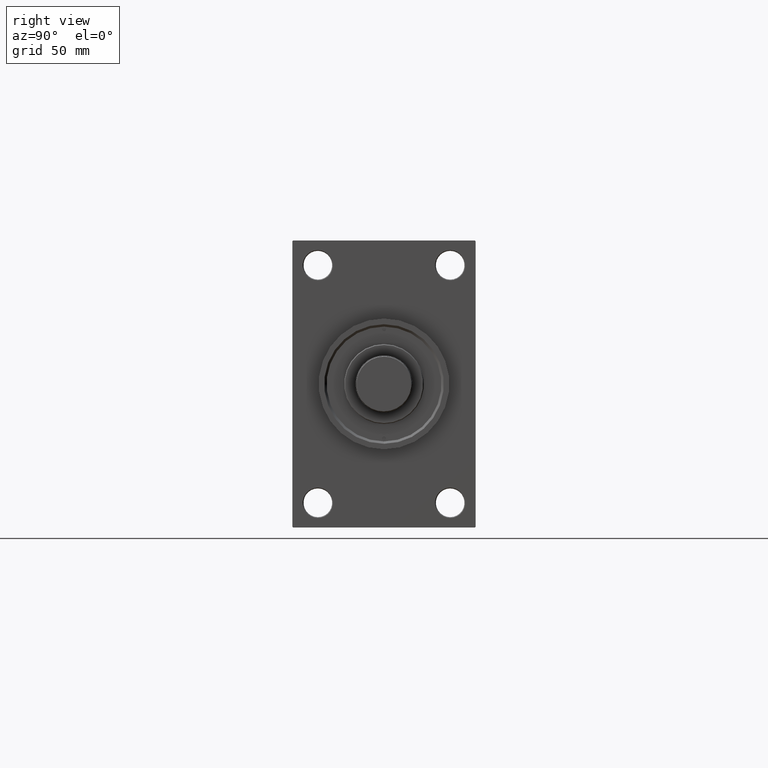
[diagram: clean part render]
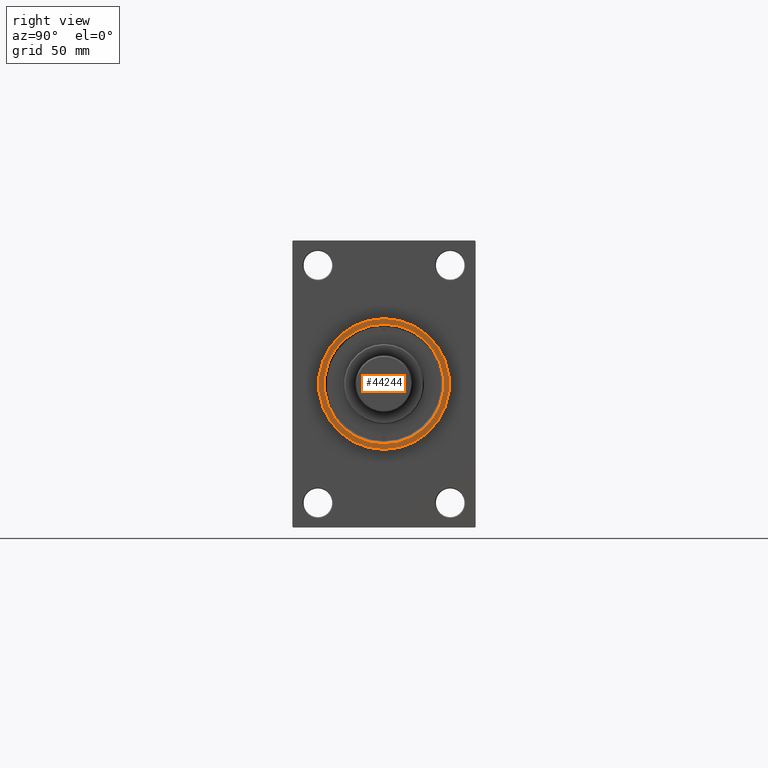
[diagram: same view with one face highlighted and labeled with its STEP entity id]
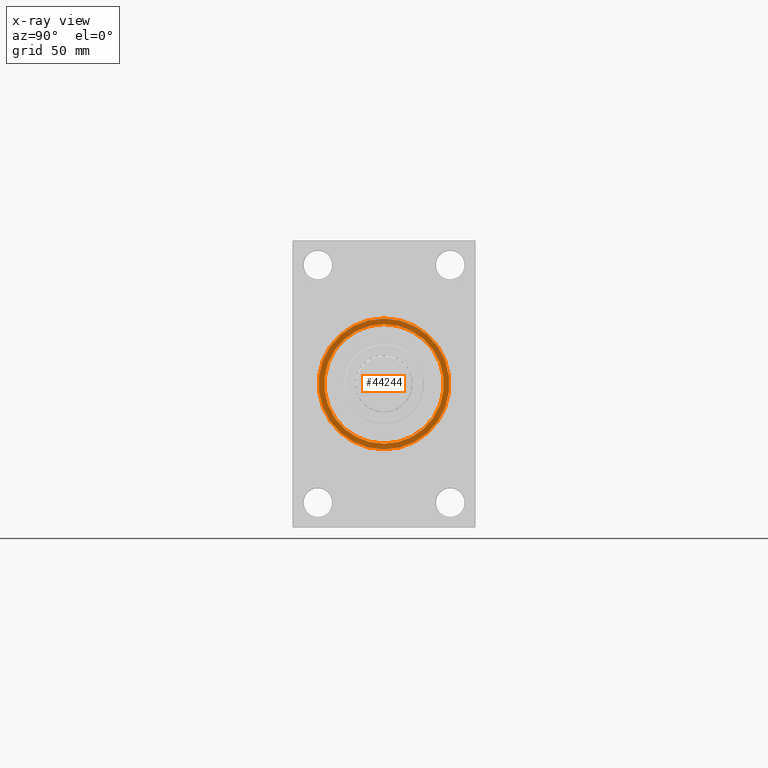
[diagram: x-ray of the same camera — body ghosted, the highlighted face saturated]
A machine part, right view. The second image highlights one B-rep face of the part: STEP entity #44244.
The next image is the same camera in x-ray: the body ghosted, the highlighted face saturated — about 0% of this face is hidden behind the body in this view.
In plain terms, the highlighted planar face has unit normal (1, 0, 0).
Its self-contained STEP definition (entity closure, byte-faithful):
#697 = DIRECTION ( 'NONE',  ( 1.000000000000000000, 0.000000000000000000, 0.000000000000000000 ) ) ;
#1362 = CARTESIAN_POINT ( 'NONE',  ( 319.0000000000000000, 4.592425496802571211E-15, 37.49999999999997868 ) ) ;
#1530 = AXIS2_PLACEMENT_3D ( 'NONE', #36891, #3397, #24674 ) ;
#1999 = DIRECTION ( 'NONE',  ( 0.000000000000000000, 0.000000000000000000, -1.000000000000000000 ) ) ;
#2140 = EDGE_CURVE ( 'NONE', #19010, #47436, #46026, .T. ) ;
#3397 = DIRECTION ( 'NONE',  ( -1.000000000000000000, -0.000000000000000000, -0.000000000000000000 ) ) ;
#8260 = DIRECTION ( 'NONE',  ( 0.000000000000000000, 0.000000000000000000, -1.000000000000000000 ) ) ;
#8942 = AXIS2_PLACEMENT_3D ( 'NONE', #16896, #17386, #21278 ) ;
#14380 = EDGE_LOOP ( 'NONE', ( #38296, #46802 ) ) ;
#15970 = CIRCLE ( 'NONE', #8942, 41.00000000000000000 ) ;
#16896 = CARTESIAN_POINT ( 'NONE',  ( 319.0000000000000000, 0.000000000000000000, 0.000000000000000000 ) ) ;
#17016 = CARTESIAN_POINT ( 'NONE',  ( 319.0000000000000000, 0.000000000000000000, 41.00000000000000000 ) ) ;
#17386 = DIRECTION ( 'NONE',  ( 1.000000000000000000, 0.000000000000000000, 0.000000000000000000 ) ) ;
#18455 = EDGE_CURVE ( 'NONE', #47436, #19010, #41334, .T. ) ;
#19010 = VERTEX_POINT ( 'NONE', #1362 ) ;
#20764 = CARTESIAN_POINT ( 'NONE',  ( 319.0000000000000000, 0.000000000000000000, 0.000000000000000000 ) ) ;
#21278 = DIRECTION ( 'NONE',  ( 0.000000000000000000, 0.000000000000000000, -1.000000000000000000 ) ) ;
#21329 = ORIENTED_EDGE ( 'NONE', *, *, #2140, .T. ) ;
#21481 = DIRECTION ( 'NONE',  ( -1.000000000000000000, -0.000000000000000000, -0.000000000000000000 ) ) ;
#23522 = VERTEX_POINT ( 'NONE', #37120 ) ;
#24217 = FACE_OUTER_BOUND ( 'NONE', #14380, .T. ) ;
#24674 = DIRECTION ( 'NONE',  ( 0.000000000000000000, 0.000000000000000000, -1.000000000000000000 ) ) ;
#28146 = CARTESIAN_POINT ( 'NONE',  ( 319.0000000000000000, 0.000000000000000000, 0.000000000000000000 ) ) ;
#28672 = AXIS2_PLACEMENT_3D ( 'NONE', #44255, #697, #8260 ) ;
#30107 = EDGE_LOOP ( 'NONE', ( #35192, #21329 ) ) ;
#30185 = FACE_BOUND ( 'NONE', #30107, .T. ) ;
#31829 = DIRECTION ( 'NONE',  ( 1.000000000000000000, 0.000000000000000000, 0.000000000000000000 ) ) ;
#32564 = CARTESIAN_POINT ( 'NONE',  ( 319.0000000000000000, 0.000000000000000000, -37.49999999999997868 ) ) ;
#32766 = AXIS2_PLACEMENT_3D ( 'NONE', #20764, #21481, #47689 ) ;
#33487 = VERTEX_POINT ( 'NONE', #17016 ) ;
#34108 = EDGE_CURVE ( 'NONE', #23522, #33487, #15970, .T. ) ;
#35192 = ORIENTED_EDGE ( 'NONE', *, *, #18455, .T. ) ;
#36891 = CARTESIAN_POINT ( 'NONE',  ( 319.0000000000000000, 0.000000000000000000, 0.000000000000000000 ) ) ;
#37120 = CARTESIAN_POINT ( 'NONE',  ( 319.0000000000000000, 5.021051876504148963E-15, -41.00000000000000000 ) ) ;
#38296 = ORIENTED_EDGE ( 'NONE', *, *, #39176, .T. ) ;
#39176 = EDGE_CURVE ( 'NONE', #33487, #23522, #45072, .T. ) ;
#41334 = CIRCLE ( 'NONE', #1530, 37.49999999999997868 ) ;
#41668 = PLANE ( 'NONE',  #44347 ) ;
#44244 = ADVANCED_FACE ( 'NONE', ( #30185, #24217 ), #41668, .T. ) ;
#44255 = CARTESIAN_POINT ( 'NONE',  ( 319.0000000000000000, 0.000000000000000000, 0.000000000000000000 ) ) ;
#44347 = AXIS2_PLACEMENT_3D ( 'NONE', #28146, #31829, #1999 ) ;
#45072 = CIRCLE ( 'NONE', #28672, 41.00000000000000000 ) ;
#46026 = CIRCLE ( 'NONE', #32766, 37.49999999999997868 ) ;
#46802 = ORIENTED_EDGE ( 'NONE', *, *, #34108, .T. ) ;
#47436 = VERTEX_POINT ( 'NONE', #32564 ) ;
#47689 = DIRECTION ( 'NONE',  ( 0.000000000000000000, 0.000000000000000000, -1.000000000000000000 ) ) ;